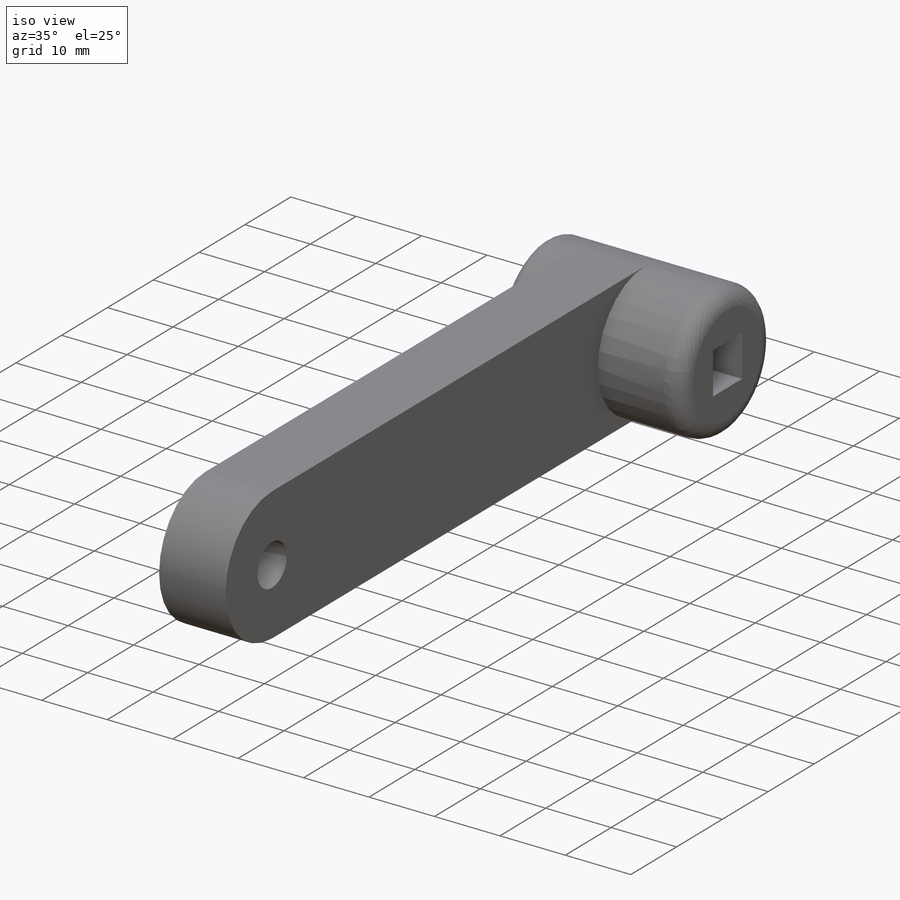
[diagram: iso view]
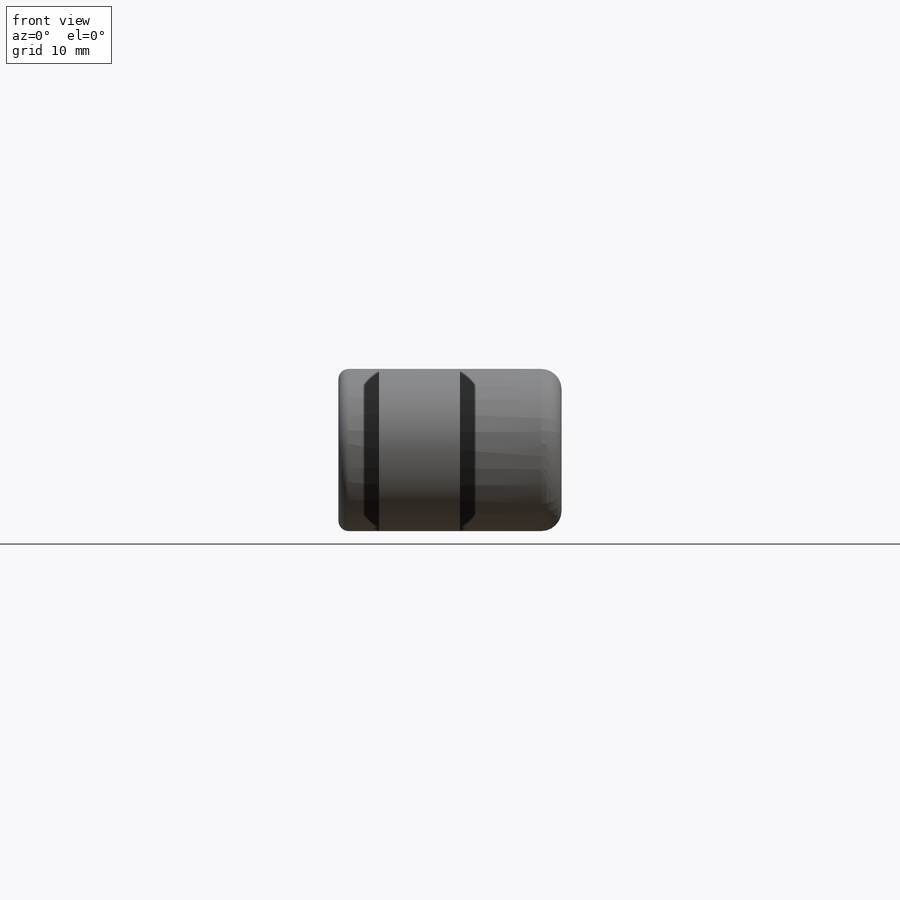
[diagram: front view]
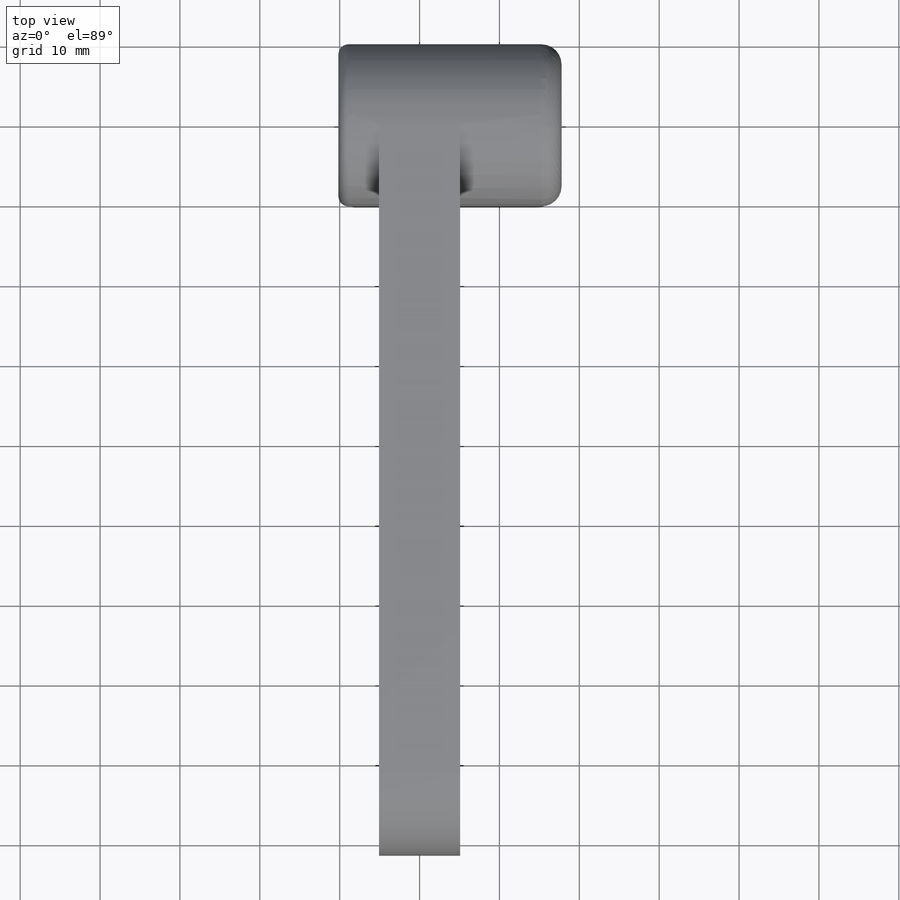
[diagram: top view]
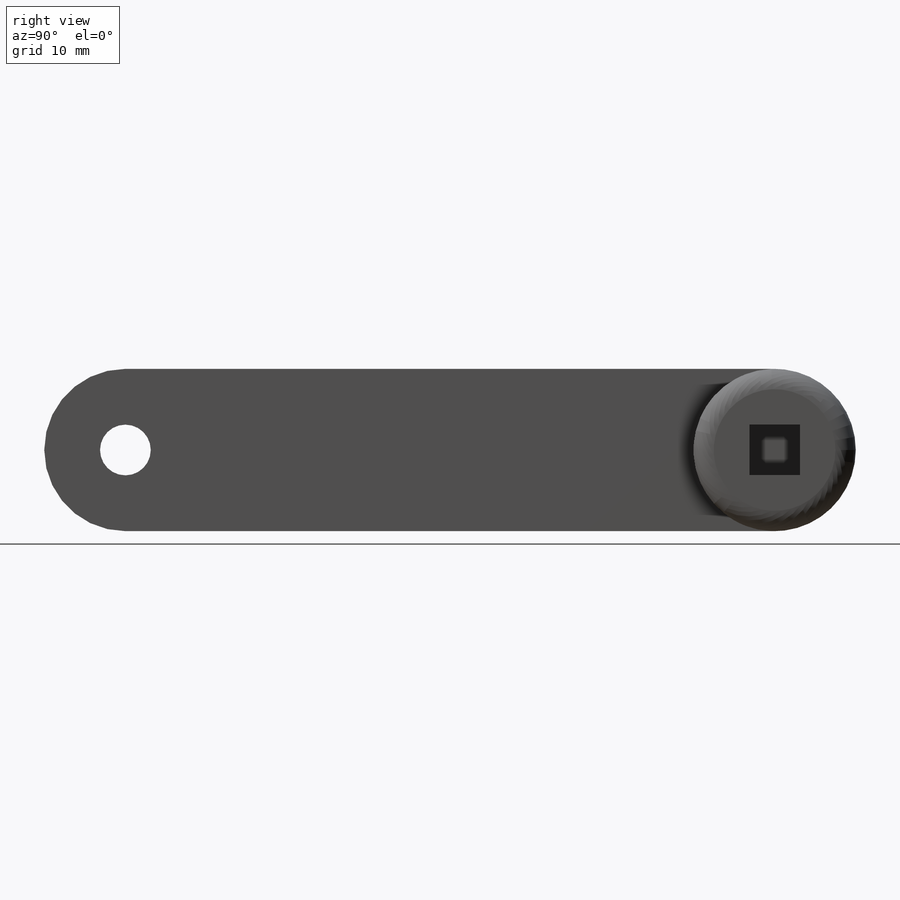
[diagram: right view]
SOLIDWORKS PART (.sldprt)
format: sldprt  version: not decoded by parser v0  size: 196,096 bytes
history: native  units: mm
features: sketch x5, extrude x3, fillet x2, cut_extrude x2, material x1 (+13 scaffold rows collapsed)
feature tree (26):
  scaffold x13  (default folders/planes/origin — collapsed)
  material  "Material <not specified>"
  sketch  "Sketch1"  dims[D1=20.32mm]
  extrude  "Boss-Extrude1"  Depth=20.32mm
  fillet  "Fillet1"  Radius=1.27mm
  sketch  "Sketch2"  dims[D1=81.28mm]
  extrude  "Boss-Extrude2"  Depth=10.16mm
  sketch  "Sketch3"
  extrude  "Boss-Extrude3"  Depth=7.62mm
  fillet  "Fillet2"  Radius=2.54mm
  sketch  "Sketch4"  dims[D1=6.35mm]
  cut_extrude  "Cut-Extrude1"  Depth=25.4mm
  sketch  "Sketch5"  dims[D1=6.35mm]
  cut_extrude  "Cut-Extrude2"  [1 undecoded]
decode coverage: 10 of 12 modeling features carry decoded parameters
note: 1 parameter value undecoded
note: suppression state not decoded; provenance and decode notes live in map.json
